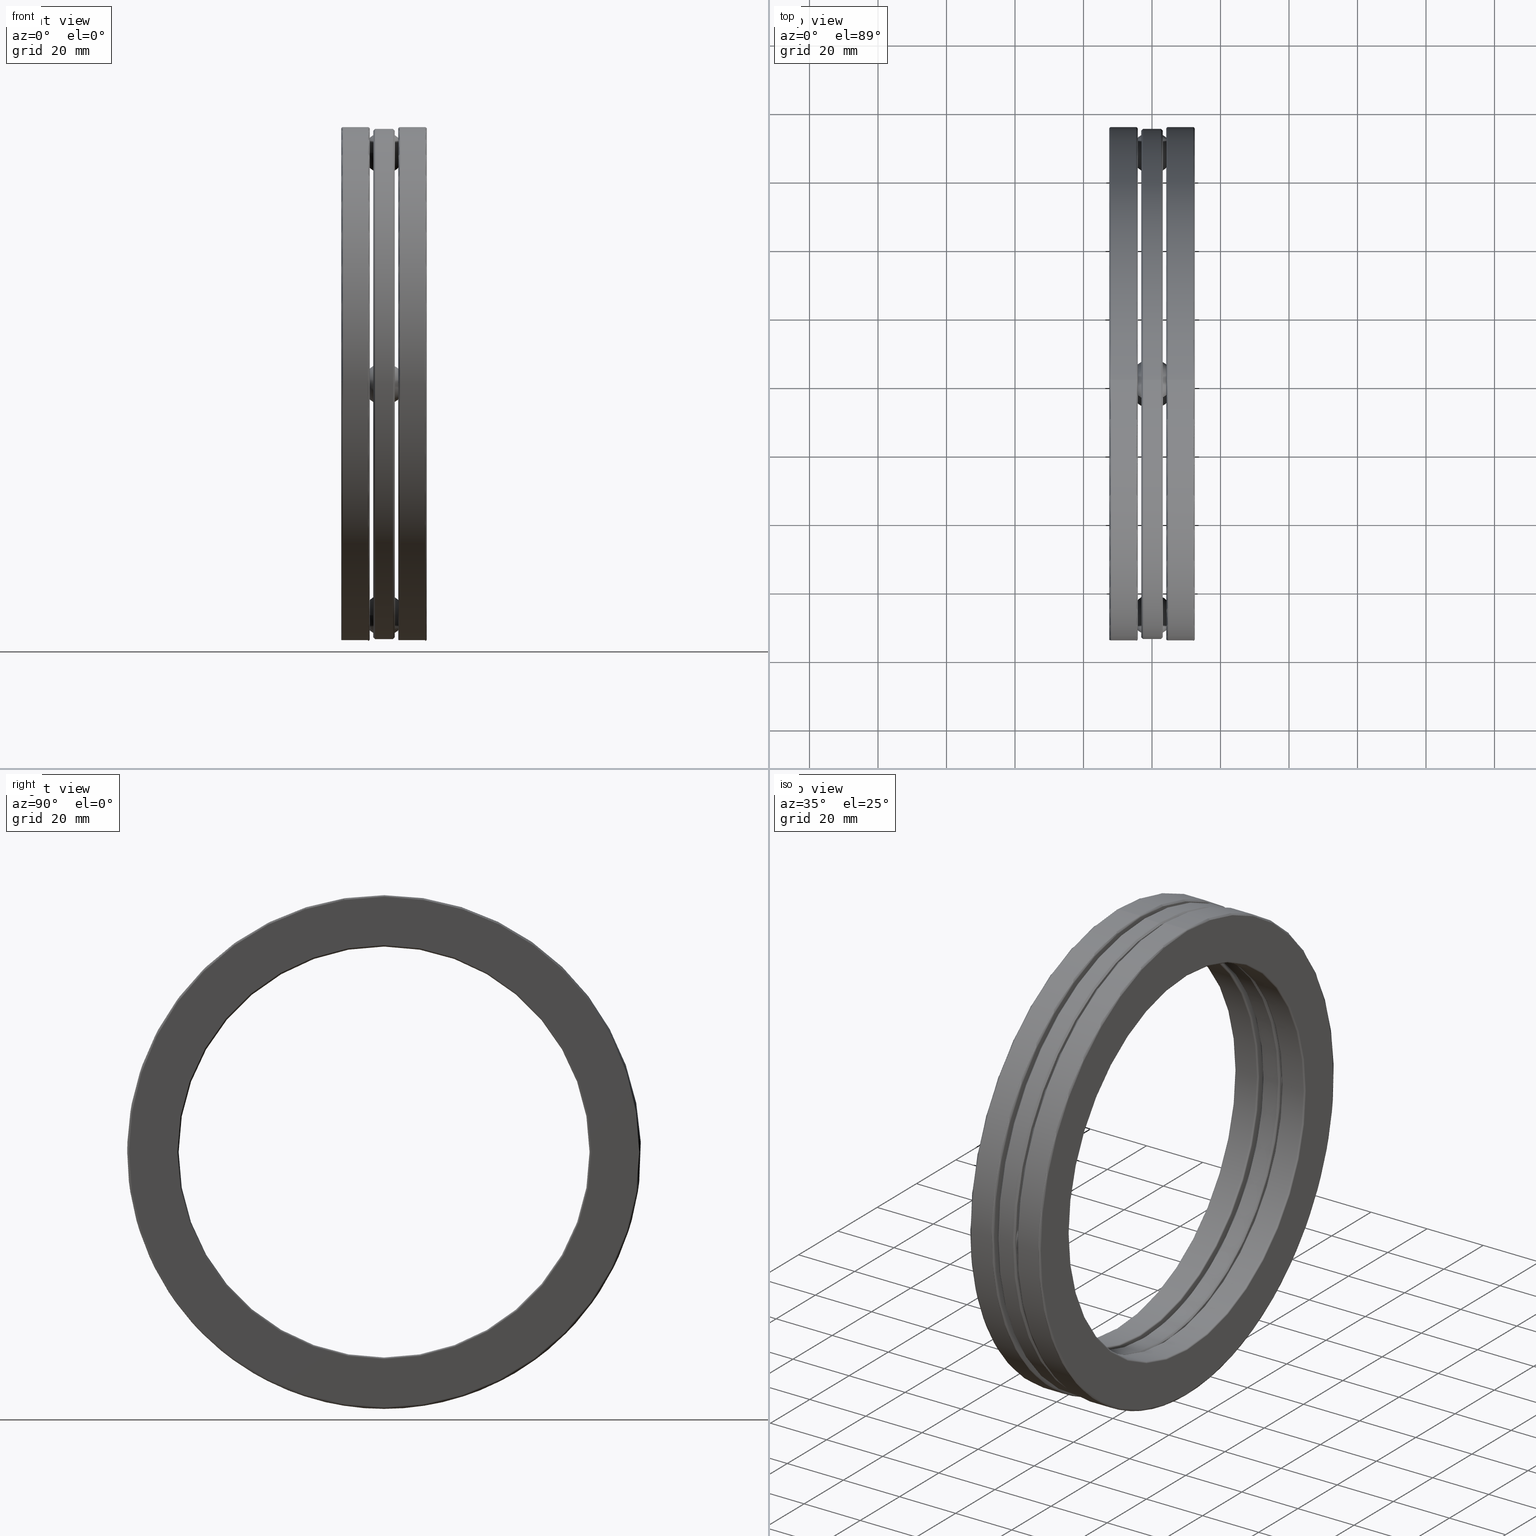
[diagram: canonical four-view strip — front | top / right | iso, engineering-drawing reading convention]
A machine part, canonical four-view strip (front | top / right | iso — engineering-drawing reading convention). The complete STEP part file that produces these views, byte-faithful:
ISO-10303-21;
HEADER;
FILE_DESCRIPTION (( 'STEP AP203' ),
    '1' );
FILE_NAME ('2923-ABB.step',
    '2017-03-07T16:43:16',
    ( '' ),
    ( '' ),
    'SwSTEP 2.0',
    'SolidWorks 2017',
    '' );
FILE_SCHEMA (( 'CONFIG_CONTROL_DESIGN' ));
ENDSEC;

DATA;
#1 = ORIENTED_EDGE ( 'NONE', *, *, #584, .F. ) ;
#2 = EDGE_LOOP ( 'NONE', ( #454 ) ) ;
#3 = DIRECTION ( 'NONE',  ( -1.000000000000000000, -0.0000000000000000000, -0.0000000000000000000 ) ) ;
#4 = EDGE_CURVE ( 'NONE', #408, #408, #273, .T. ) ;
#5 = CARTESIAN_POINT ( 'NONE',  ( 1.627249434367045600E-016, -2.657499999999999800, 0.0000000000000000000 ) ) ;
#6 = DIRECTION ( 'NONE',  ( 1.000000000000000000, 0.0000000000000000000, 0.0000000000000000000 ) ) ;
#7 = EDGE_LOOP ( 'NONE', ( #129 ) ) ;
#8 = EDGE_LOOP ( 'NONE', ( #462 ) ) ;
#9 = DIRECTION ( 'NONE',  ( -1.000000000000000000, -0.0000000000000000000, -0.0000000000000000000 ) ) ;
#10 = VERTEX_POINT ( 'NONE', #721 ) ;
#11 = CIRCLE ( 'NONE', #439, 2.933000000000000300 ) ;
#12 = ADVANCED_FACE ( 'NONE', ( #139, #588 ), #550, .T. ) ;
#13 = EDGE_CURVE ( 'NONE', #190, #190, #600, .T. ) ;
#14 = CARTESIAN_POINT ( 'NONE',  ( -0.4919999999999998300, 0.0000000000000000000, 0.0000000000000000000 ) ) ;
#15 = ORIENTED_EDGE ( 'NONE', *, *, #645, .F. ) ;
#16 = FACE_OUTER_BOUND ( 'NONE', #688, .T. ) ;
#17 = DIRECTION ( 'NONE',  ( 0.0000000000000000000, -1.000000000000000000, 4.424045333869238700E-015 ) ) ;
#18 = ORIENTED_EDGE ( 'NONE', *, *, #78, .F. ) ;
#19 = ADVANCED_FACE ( 'NONE', ( #511, #82, #470, #106, #729, #214 ), #580, .T. ) ;
#20 = CARTESIAN_POINT ( 'NONE',  ( -0.1229999999999999600, -2.657499999999999800, 0.0000000000000000000 ) ) ;
#21 = PERSON_AND_ORGANIZATION ( #723, #791 ) ;
#22 = CIRCLE ( 'NONE', #792, 2.913000000000000300 ) ;
#23 = ADVANCED_FACE ( 'NONE', ( #312, #810 ), #612, .T. ) ;
#24 = DIRECTION ( 'NONE',  ( -1.000000000000000000, -0.0000000000000000000, -0.0000000000000000000 ) ) ;
#25 = DIRECTION ( 'NONE',  ( -1.000000000000000000, -0.0000000000000000000, -0.0000000000000000000 ) ) ;
#26 = AXIS2_PLACEMENT_3D ( 'NONE', #533, #69, #589 ) ;
#27 = FACE_BOUND ( 'NONE', #477, .T. ) ;
#28 = ADVANCED_FACE ( 'NONE', ( #444, #405 ), #434, .T. ) ;
#29 = EDGE_LOOP ( 'NONE', ( #637 ) ) ;
#30 = DIRECTION ( 'NONE',  ( -1.000000000000000000, -0.0000000000000000000, -0.0000000000000000000 ) ) ;
#31 = EDGE_LOOP ( 'NONE', ( #504 ) ) ;
#32 = SECURITY_CLASSIFICATION_LEVEL ( 'unclassified' ) ;
#33 = CARTESIAN_POINT ( 'NONE',  ( 0.1640032800000013100, 0.0000000000000000000, 0.0000000000000000000 ) ) ;
#34 = EDGE_CURVE ( 'NONE', #757, #757, #790, .T. ) ;
#35 = PERSON_AND_ORGANIZATION ( #723, #791 ) ;
#36 = CARTESIAN_POINT ( 'NONE',  ( -0.1029999999999999900, 0.0000000000000000000, 2.933000000000000300 ) ) ;
#37 = CIRCLE ( 'NONE', #592, 2.362000000000000100 ) ;
#38 = DIRECTION ( 'NONE',  ( 0.0000000000000000000, 0.0000000000000000000, 1.000000000000000000 ) ) ;
#39 = CARTESIAN_POINT ( 'NONE',  ( 0.1230000000000000700, 0.0000000000000000000, 2.402000000000000100 ) ) ;
#40 = CARTESIAN_POINT ( 'NONE',  ( -0.1640032799999996400, 0.0000000000000000000, 0.0000000000000000000 ) ) ;
#41 = EDGE_LOOP ( 'NONE', ( #384 ) ) ;
#42 = AXIS2_PLACEMENT_3D ( 'NONE', #336, #274, #764 ) ;
#43 = CARTESIAN_POINT ( 'NONE',  ( 0.1640032800000013100, 0.0000000000000000000, 2.835452027662629200 ) ) ;
#44 = CIRCLE ( 'NONE', #369, 0.2470000000000007500 ) ;
#45 = EDGE_LOOP ( 'NONE', ( #420 ) ) ;
#46 = CARTESIAN_POINT ( 'NONE',  ( -0.4719999999999998600, 0.0000000000000000000, 0.0000000000000000000 ) ) ;
#47 = DIRECTION ( 'NONE',  ( 1.000000000000000000, 0.0000000000000000000, 0.0000000000000000000 ) ) ;
#48 = PERSON_AND_ORGANIZATION_ROLE ( 'creator' ) ;
#49 = DIRECTION ( 'NONE',  ( -1.000000000000000000, -0.0000000000000000000, -0.0000000000000000000 ) ) ;
#50 = APPROVAL_PERSON_ORGANIZATION ( #695, #56, #671 ) ;
#51 = FACE_BOUND ( 'NONE', #80, .T. ) ;
#52 = EDGE_LOOP ( 'NONE', ( #325 ) ) ;
#53 = FACE_OUTER_BOUND ( 'NONE', #451, .T. ) ;
#54 = TOROIDAL_SURFACE ( 'NONE', #744, 2.657499999999999800, 0.2420000000000001900 ) ;
#55 = CARTESIAN_POINT ( 'NONE',  ( -0.4920393700787399300, -2.657499999999999800, 0.0000000000000000000 ) ) ;
#56 = APPROVAL ( #505, 'UNSPECIFIED' ) ;
#57 = VERTEX_POINT ( 'NONE', #188 ) ;
#58 = CARTESIAN_POINT ( 'NONE',  ( 0.1640032800000013100, 0.0000000000000000000, 0.0000000000000000000 ) ) ;
#59 = CIRCLE ( 'NONE', #26, 2.402000000000000100 ) ;
#60 = DIRECTION ( 'NONE',  ( 0.0000000000000000000, 0.0000000000000000000, 1.000000000000000000 ) ) ;
#61 = AXIS2_PLACEMENT_3D ( 'NONE', #682, #49, #508 ) ;
#62 = DIRECTION ( 'NONE',  ( 0.0000000000000000000, 0.0000000000000000000, 1.000000000000000000 ) ) ;
#63 = EDGE_LOOP ( 'NONE', ( #108 ) ) ;
#64 = APPROVAL_DATE_TIME ( #311, #131 ) ;
#65 = FACE_OUTER_BOUND ( 'NONE', #63, .T. ) ;
#66 = CC_DESIGN_APPROVAL ( #257, ( #380 ) ) ;
#67 = PERSON_AND_ORGANIZATION ( #723, #791 ) ;
#68 = TOROIDAL_SURFACE ( 'NONE', #534, 2.381999999999999700, 0.01999999999999988900 ) ;
#69 = DIRECTION ( 'NONE',  ( -1.000000000000000000, -0.0000000000000000000, -0.0000000000000000000 ) ) ;
#70 = EDGE_LOOP ( 'NONE', ( #158 ) ) ;
#71 = FACE_BOUND ( 'NONE', #778, .T. ) ;
#72 = TOROIDAL_SURFACE ( 'NONE', #119, 2.932999999999999400, 0.01999999999999988900 ) ;
#73 = DIRECTION ( 'NONE',  ( 0.0000000000000000000, -1.000000000000000000, 1.047444401652940000E-014 ) ) ;
#74 = ORIENTED_EDGE ( 'NONE', *, *, #282, .T. ) ;
#75 = AXIS2_PLACEMENT_3D ( 'NONE', #400, #140, #549 ) ;
#76 = VERTEX_POINT ( 'NONE', #563 ) ;
#77 = FACE_OUTER_BOUND ( 'NONE', #569, .T. ) ;
#78 = EDGE_CURVE ( 'NONE', #638, #638, #581, .T. ) ;
#79 = DIRECTION ( 'NONE',  ( 0.0000000000000000000, 0.0000000000000000000, 1.000000000000000000 ) ) ;
#80 = EDGE_LOOP ( 'NONE', ( #355 ) ) ;
#81 = AXIS2_PLACEMENT_3D ( 'NONE', #601, #356, #307 ) ;
#82 = FACE_BOUND ( 'NONE', #45, .T. ) ;
#83 = DIMENSIONAL_EXPONENTS ( 1.000000000000000000, 0.0000000000000000000, 0.0000000000000000000, 0.0000000000000000000, 0.0000000000000000000, 0.0000000000000000000, 0.0000000000000000000 ) ;
#84 = EDGE_LOOP ( 'NONE', ( #205 ) ) ;
#85 = CARTESIAN_POINT ( 'NONE',  ( 0.1640032800000013100, 0.0000000000000000000, 2.381999999999999700 ) ) ;
#86 = AXIS2_PLACEMENT_3D ( 'NONE', #430, #677, #487 ) ;
#87 = VERTEX_POINT ( 'NONE', #184 ) ;
#88 = ADVANCED_FACE ( 'NONE', ( #422, #262 ), #96, .T. ) ;
#89 = FACE_OUTER_BOUND ( 'NONE', #41, .T. ) ;
#90 = DIRECTION ( 'NONE',  ( 0.0000000000000000000, 0.0000000000000000000, 1.000000000000000000 ) ) ;
#91 = DIRECTION ( 'NONE',  ( -1.000000000000000000, -0.0000000000000000000, -0.0000000000000000000 ) ) ;
#92 = EDGE_CURVE ( 'NONE', #650, #650, #491, .T. ) ;
#93 = ADVANCED_FACE ( 'NONE', ( #526, #331 ), #72, .T. ) ;
#94 = EDGE_LOOP ( 'NONE', ( #740 ) ) ;
#95 =( LENGTH_UNIT ( ) NAMED_UNIT ( * ) SI_UNIT ( $, .METRE. ) );
#96 = TOROIDAL_SURFACE ( 'NONE', #431, 2.932999999999999400, 0.02000000000000016300 ) ;
#97 = DIRECTION ( 'NONE',  ( -1.000000000000000000, -0.0000000000000000000, -0.0000000000000000000 ) ) ;
#98 = ADVANCED_FACE ( 'NONE', ( #571, #127 ), #741, .T. ) ;
#99 = CARTESIAN_POINT ( 'NONE',  ( -0.1840032799999996300, 0.0000000000000000000, 0.0000000000000000000 ) ) ;
#100 = CIRCLE ( 'NONE', #75, 2.362000000000000100 ) ;
#101 = CARTESIAN_POINT ( 'NONE',  ( 0.4920000000000002700, 0.0000000000000000000, 2.932999999999999400 ) ) ;
#102 = ADVANCED_FACE ( 'NONE', ( #414, #362 ), #54, .F. ) ;
#103 = AXIS2_PLACEMENT_3D ( 'NONE', #55, #334, #636 ) ;
#104 =( NAMED_UNIT ( * ) SI_UNIT ( $, .STERADIAN. ) SOLID_ANGLE_UNIT ( ) );
#105 = EDGE_LOOP ( 'NONE', ( #381 ) ) ;
#106 = FACE_BOUND ( 'NONE', #690, .T. ) ;
#107 = CARTESIAN_POINT ( 'NONE',  ( -0.1229999999999999600, -9.278611657975625200E-015, -2.657499999999999800 ) ) ;
#108 = ORIENTED_EDGE ( 'NONE', *, *, #448, .F. ) ;
#109 = CARTESIAN_POINT ( 'NONE',  ( -0.1229999999999999600, -2.657499999999999800, 0.2470000000000007500 ) ) ;
#110 = VERTEX_POINT ( 'NONE', #736 ) ;
#111 = CARTESIAN_POINT ( 'NONE',  ( 0.4720000000000014700, 0.0000000000000000000, 2.362000000000000100 ) ) ;
#112 = CIRCLE ( 'NONE', #322, 2.913000000000000300 ) ;
#113 =( GEOMETRIC_REPRESENTATION_CONTEXT ( 3 ) GLOBAL_UNCERTAINTY_ASSIGNED_CONTEXT ( ( #593 ) ) GLOBAL_UNIT_ASSIGNED_CONTEXT ( ( #553, #489, #104 ) ) REPRESENTATION_CONTEXT ( 'NONE', 'WORKASPACE' ) );
#114 = CARTESIAN_POINT ( 'NONE',  ( -0.1840032799999996300, 0.0000000000000000000, 2.952999999999999400 ) ) ;
#115 = DIRECTION ( 'NONE',  ( 0.0000000000000000000, 1.000000000000000000, -1.106011333467309800E-014 ) ) ;
#116 = CYLINDRICAL_SURFACE ( 'NONE', #86, 2.381999999999999700 ) ;
#117 = ORIENTED_EDGE ( 'NONE', *, *, #314, .T. ) ;
#118 = DIRECTION ( 'NONE',  ( -1.000000000000000000, -0.0000000000000000000, -0.0000000000000000000 ) ) ;
#119 = AXIS2_PLACEMENT_3D ( 'NONE', #629, #685, #255 ) ;
#120 = COORDINATED_UNIVERSAL_TIME_OFFSET ( 5, 0, .BEHIND. ) ;
#121 = CARTESIAN_POINT ( 'NONE',  ( 0.0000000000000000000, 0.0000000000000000000, 0.0000000000000000000 ) ) ;
#122 = CARTESIAN_POINT ( 'NONE',  ( 0.1230000000000000700, 0.0000000000000000000, 0.0000000000000000000 ) ) ;
#123 = ORIENTED_EDGE ( 'NONE', *, *, #503, .F. ) ;
#124 = AXIS2_PLACEMENT_3D ( 'NONE', #263, #507, #441 ) ;
#125 = CLOSED_SHELL ( 'NONE', ( #412, #784, #551, #234, #88, #727, #148, #239, #471, #606 ) ) ;
#126 = DIRECTION ( 'NONE',  ( 0.0000000000000000000, 0.0000000000000000000, -1.000000000000000000 ) ) ;
#127 = FACE_OUTER_BOUND ( 'NONE', #315, .T. ) ;
#128 = DESIGN_CONTEXT ( 'detailed design', #749, 'design' ) ;
#129 = ORIENTED_EDGE ( 'NONE', *, *, #752, .T. ) ;
#130 = DIRECTION ( 'NONE',  ( 0.0000000000000000000, 0.0000000000000000000, 1.000000000000000000 ) ) ;
#131 = APPROVAL ( #243, 'UNSPECIFIED' ) ;
#132 = DIRECTION ( 'NONE',  ( 0.0000000000000000000, 0.0000000000000000000, 1.000000000000000000 ) ) ;
#133 = VERTEX_POINT ( 'NONE', #433 ) ;
#134 = CIRCLE ( 'NONE', #275, 2.952999999999999400 ) ;
#135 = AXIS2_PLACEMENT_3D ( 'NONE', #143, #251, #804 ) ;
#136 = ORIENTED_EDGE ( 'NONE', *, *, #295, .T. ) ;
#137 = FACE_OUTER_BOUND ( 'NONE', #310, .T. ) ;
#138 = AXIS2_PLACEMENT_3D ( 'NONE', #519, #392, #132 ) ;
#139 = FACE_OUTER_BOUND ( 'NONE', #413, .T. ) ;
#140 = DIRECTION ( 'NONE',  ( -1.000000000000000000, -0.0000000000000000000, -0.0000000000000000000 ) ) ;
#141 = LENGTH_MEASURE_WITH_UNIT ( LENGTH_MEASURE( 0.02539999999999999900 ), #95 );
#142 = DIRECTION ( 'NONE',  ( 0.0000000000000000000, 0.0000000000000000000, 1.000000000000000000 ) ) ;
#143 = CARTESIAN_POINT ( 'NONE',  ( -0.1640032799999996400, 0.0000000000000000000, 0.0000000000000000000 ) ) ;
#144 = CARTESIAN_POINT ( 'NONE',  ( 1.627249434367045600E-016, 2.783583497392687900E-014, 2.657499999999999800 ) ) ;
#145 = FACE_OUTER_BOUND ( 'NONE', #197, .T. ) ;
#146 = ORIENTED_EDGE ( 'NONE', *, *, #766, .F. ) ;
#147 = ORIENTED_EDGE ( 'NONE', *, *, #674, .F. ) ;
#148 = ADVANCED_FACE ( 'NONE', ( #706, #383 ), #194, .T. ) ;
#149 = VERTEX_POINT ( 'NONE', #498 ) ;
#150 = CIRCLE ( 'NONE', #524, 2.952999999999999400 ) ;
#151 = EDGE_CURVE ( 'NONE', #10, #10, #664, .T. ) ;
#152 = CARTESIAN_POINT ( 'NONE',  ( -0.1640032799999996400, 0.0000000000000000000, 2.835452027662630500 ) ) ;
#153 = ADVANCED_FACE ( 'NONE', ( #779, #65 ), #481, .F. ) ;
#154 = CC_DESIGN_SECURITY_CLASSIFICATION ( #707, ( #175 ) ) ;
#155 = DIRECTION ( 'NONE',  ( 0.0000000000000000000, 0.0000000000000000000, 1.000000000000000000 ) ) ;
#156 = DIRECTION ( 'NONE',  ( 0.0000000000000000000, 0.0000000000000000000, 1.000000000000000000 ) ) ;
#157 = CIRCLE ( 'NONE', #759, 2.932999999999999400 ) ;
#158 = ORIENTED_EDGE ( 'NONE', *, *, #328, .F. ) ;
#159 = DIRECTION ( 'NONE',  ( 0.0000000000000000000, 0.0000000000000000000, 1.000000000000000000 ) ) ;
#160 = PERSON_AND_ORGANIZATION ( #723, #791 ) ;
#161 = DIRECTION ( 'NONE',  ( -1.000000000000000000, -0.0000000000000000000, -0.0000000000000000000 ) ) ;
#162 = ADVANCED_FACE ( 'NONE', ( #452, #250 ), #395, .F. ) ;
#163 = AXIS2_PLACEMENT_3D ( 'NONE', #560, #627, #374 ) ;
#164 = DIRECTION ( 'NONE',  ( 0.0000000000000000000, 0.0000000000000000000, -1.000000000000000000 ) ) ;
#165 = EDGE_LOOP ( 'NONE', ( #771 ) ) ;
#166 = DIRECTION ( 'NONE',  ( 0.0000000000000000000, -1.000000000000000000, 2.212022666934619400E-015 ) ) ;
#167 = FACE_OUTER_BOUND ( 'NONE', #754, .T. ) ;
#168 = ADVANCED_FACE ( 'NONE', ( #237, #167 ), #548, .T. ) ;
#169 = APPLICATION_PROTOCOL_DEFINITION ( 'international standard', 'config_control_design', 1994, #749 ) ;
#170 = EDGE_LOOP ( 'NONE', ( #613 ) ) ;
#171 = EDGE_LOOP ( 'NONE', ( #717 ) ) ;
#172 = CARTESIAN_POINT ( 'NONE',  ( 0.4720000000000014700, 0.0000000000000000000, 0.0000000000000000000 ) ) ;
#173 = AXIS2_PLACEMENT_3D ( 'NONE', #478, #25, #485 ) ;
#174 = PERSON_AND_ORGANIZATION_ROLE ( 'design_owner' ) ;
#175 = PRODUCT_DEFINITION_FORMATION_WITH_SPECIFIED_SOURCE ( 'ANY', '', #402, .NOT_KNOWN. ) ;
#176 = CARTESIAN_POINT ( 'NONE',  ( 1.627249434367045600E-016, -9.278611657975625200E-015, -2.657499999999999800 ) ) ;
#177 = CIRCLE ( 'NONE', #353, 0.2470000000000007500 ) ;
#178 = APPROVAL_STATUS ( 'not_yet_approved' ) ;
#179 = MANIFOLD_SOLID_BREP ( 'Revolve3', #762 ) ;
#180 = CARTESIAN_POINT ( 'NONE',  ( 0.0000000000000000000, 0.0000000000000000000, 0.0000000000000000000 ) ) ;
#181 = MANIFOLD_SOLID_BREP ( 'Revolve1', #125 ) ;
#182 = PLANE ( 'NONE',  #496 ) ;
#183 = AXIS2_PLACEMENT_3D ( 'NONE', #625, #118, #515 ) ;
#184 = CARTESIAN_POINT ( 'NONE',  ( -0.1640032799999996400, 0.0000000000000000000, 2.932999999999999400 ) ) ;
#185 = EDGE_LOOP ( 'NONE', ( #610 ) ) ;
#186 = DIRECTION ( 'NONE',  ( 0.0000000000000000000, 1.000000000000000000, -3.491481338843133400E-015 ) ) ;
#187 = ORIENTED_EDGE ( 'NONE', *, *, #622, .F. ) ;
#188 = CARTESIAN_POINT ( 'NONE',  ( -0.1229999999999999600, 2.657499999999999800, -0.2470000000000007500 ) ) ;
#189 = AXIS2_PLACEMENT_3D ( 'NONE', #661, #91, #156 ) ;
#190 = VERTEX_POINT ( 'NONE', #539 ) ;
#191 = DIRECTION ( 'NONE',  ( 0.0000000000000000000, 0.0000000000000000000, 1.000000000000000000 ) ) ;
#192 = CARTESIAN_POINT ( 'NONE',  ( 0.1840032800000013000, 0.0000000000000000000, 0.0000000000000000000 ) ) ;
#193 = AXIS2_PLACEMENT_3D ( 'NONE', #602, #732, #725 ) ;
#194 = TOROIDAL_SURFACE ( 'NONE', #163, 2.381999999999999700, 0.02000000000000002500 ) ;
#195 = DIRECTION ( 'NONE',  ( 0.0000000000000000000, 0.0000000000000000000, 1.000000000000000000 ) ) ;
#196 = CC_DESIGN_APPROVAL ( #56, ( #175 ) ) ;
#197 = EDGE_LOOP ( 'NONE', ( #147 ) ) ;
#198 = PLANE ( 'NONE',  #824 ) ;
#199 = AXIS2_PLACEMENT_3D ( 'NONE', #450, #385, #578 ) ;
#200 = VERTEX_POINT ( 'NONE', #377 ) ;
#201 = FACE_OUTER_BOUND ( 'NONE', #635, .T. ) ;
#202 = PRODUCT_DEFINITION_SHAPE ( 'NONE', 'NONE',  #380 ) ;
#203 = DIRECTION ( 'NONE',  ( 0.0000000000000000000, 0.0000000000000000000, -1.000000000000000000 ) ) ;
#204 = EDGE_CURVE ( 'NONE', #319, #319, #157, .T. ) ;
#205 = ORIENTED_EDGE ( 'NONE', *, *, #538, .T. ) ;
#206 = FACE_OUTER_BOUND ( 'NONE', #680, .T. ) ;
#207 = EDGE_LOOP ( 'NONE', ( #506 ) ) ;
#208 = AXIS2_PLACEMENT_3D ( 'NONE', #494, #663, #745 ) ;
#209 = PERSON_AND_ORGANIZATION ( #723, #791 ) ;
#210 = FACE_OUTER_BOUND ( 'NONE', #521, .T. ) ;
#211 = DIRECTION ( 'NONE',  ( 0.0000000000000000000, 0.0000000000000000000, -1.000000000000000000 ) ) ;
#212 = DIRECTION ( 'NONE',  ( -1.000000000000000000, -0.0000000000000000000, -0.0000000000000000000 ) ) ;
#213 = AXIS2_PLACEMENT_3D ( 'NONE', #253, #561, #733 ) ;
#214 = FACE_OUTER_BOUND ( 'NONE', #798, .T. ) ;
#215 = ORIENTED_EDGE ( 'NONE', *, *, #766, .T. ) ;
#216 = VERTEX_POINT ( 'NONE', #43 ) ;
#217 = EDGE_CURVE ( 'NONE', #216, #216, #393, .T. ) ;
#218 = FACE_BOUND ( 'NONE', #8, .T. ) ;
#219 = DIRECTION ( 'NONE',  ( 1.000000000000000000, 0.0000000000000000000, 0.0000000000000000000 ) ) ;
#220 = CC_DESIGN_PERSON_AND_ORGANIZATION_ASSIGNMENT ( #209, #739, ( #175 ) ) ;
#221 = DIRECTION ( 'NONE',  ( -1.000000000000000000, -0.0000000000000000000, -0.0000000000000000000 ) ) ;
#222 = EDGE_LOOP ( 'NONE', ( #787 ) ) ;
#223 = CARTESIAN_POINT ( 'NONE',  ( 0.1640032800000013100, 0.0000000000000000000, 0.0000000000000000000 ) ) ;
#224 = FACE_OUTER_BOUND ( 'NONE', #170, .T. ) ;
#225 = ADVANCED_FACE ( 'NONE', ( #224, #284 ), #755, .F. ) ;
#226 = DIRECTION ( 'NONE',  ( 0.0000000000000000000, 0.0000000000000000000, 1.000000000000000000 ) ) ;
#227 = ORIENTED_EDGE ( 'NONE', *, *, #286, .T. ) ;
#228 = AXIS2_PLACEMENT_3D ( 'NONE', #737, #375, #668 ) ;
#229 = DIRECTION ( 'NONE',  ( 1.000000000000000000, 0.0000000000000000000, 0.0000000000000000000 ) ) ;
#230 = LOCAL_TIME ( 11, 43, 16.00000000000000000, #564 ) ;
#231 = SPHERICAL_SURFACE ( 'NONE', #608, 0.2420000000000001900 ) ;
#232 = CARTESIAN_POINT ( 'NONE',  ( -0.1640032799999996400, 0.0000000000000000000, 0.0000000000000000000 ) ) ;
#233 = DIRECTION ( 'NONE',  ( 0.0000000000000000000, 0.0000000000000000000, -1.000000000000000000 ) ) ;
#234 = ADVANCED_FACE ( 'NONE', ( #16, #206 ), #817, .T. ) ;
#235 = EDGE_LOOP ( 'NONE', ( #659 ) ) ;
#236 = FACE_BOUND ( 'NONE', #2, .T. ) ;
#237 = FACE_BOUND ( 'NONE', #468, .T. ) ;
#238 = EDGE_LOOP ( 'NONE', ( #597 ) ) ;
#239 = ADVANCED_FACE ( 'NONE', ( #641, #145 ), #382, .F. ) ;
#240 = CC_DESIGN_DATE_AND_TIME_ASSIGNMENT ( #416, #565, ( #707 ) ) ;
#241 = DIRECTION ( 'NONE',  ( -1.000000000000000000, -0.0000000000000000000, -0.0000000000000000000 ) ) ;
#242 = VERTEX_POINT ( 'NONE', #114 ) ;
#243 = APPROVAL_STATUS ( 'not_yet_approved' ) ;
#244 = CIRCLE ( 'NONE', #773, 2.381999999999999700 ) ;
#245 = AXIS2_PLACEMENT_3D ( 'NONE', #258, #241, #492 ) ;
#246 = APPROVAL_ROLE ( '' ) ;
#247 = DIRECTION ( 'NONE',  ( 0.0000000000000000000, 0.0000000000000000000, 1.000000000000000000 ) ) ;
#248 = ORIENTED_EDGE ( 'NONE', *, *, #575, .F. ) ;
#249 = CARTESIAN_POINT ( 'NONE',  ( 0.1840032800000013000, 0.0000000000000000000, 2.952999999999999400 ) ) ;
#250 = FACE_OUTER_BOUND ( 'NONE', #763, .T. ) ;
#251 = DIRECTION ( 'NONE',  ( -1.000000000000000000, -0.0000000000000000000, -0.0000000000000000000 ) ) ;
#252 = ORIENTED_EDGE ( 'NONE', *, *, #702, .F. ) ;
#253 = CARTESIAN_POINT ( 'NONE',  ( 0.0000000000000000000, 0.0000000000000000000, 0.0000000000000000000 ) ) ;
#254 = EDGE_CURVE ( 'NONE', #465, #465, #679, .T. ) ;
#255 = DIRECTION ( 'NONE',  ( 0.0000000000000000000, 0.0000000000000000000, 1.000000000000000000 ) ) ;
#256 = CALENDAR_DATE ( 2017, 7, 3 ) ;
#257 = APPROVAL ( #178, 'UNSPECIFIED' ) ;
#258 = CARTESIAN_POINT ( 'NONE',  ( -0.1229999999999999400, 0.0000000000000000000, 0.0000000000000000000 ) ) ;
#259 = SPHERICAL_SURFACE ( 'NONE', #396, 0.2420000000000001900 ) ;
#260 = EDGE_LOOP ( 'NONE', ( #435 ) ) ;
#261 = CIRCLE ( 'NONE', #782, 2.932999999999999400 ) ;
#262 = FACE_OUTER_BOUND ( 'NONE', #777, .T. ) ;
#263 = CARTESIAN_POINT ( 'NONE',  ( 0.1230000000000000300, -2.657499999999999800, 0.0000000000000000000 ) ) ;
#264 = DIRECTION ( 'NONE',  ( 1.000000000000000000, 0.0000000000000000000, 0.0000000000000000000 ) ) ;
#265 = AXIS2_PLACEMENT_3D ( 'NONE', #223, #614, #247 ) ;
#266 = VERTEX_POINT ( 'NONE', #361 ) ;
#267 = CARTESIAN_POINT ( 'NONE',  ( 0.1640032800000013100, 0.0000000000000000000, 0.0000000000000000000 ) ) ;
#268 = FACE_OUTER_BOUND ( 'NONE', #105, .T. ) ;
#269 = DIRECTION ( 'NONE',  ( 0.0000000000000000000, 0.0000000000000000000, 1.000000000000000000 ) ) ;
#270 = CARTESIAN_POINT ( 'NONE',  ( 0.1640032800000013100, 0.0000000000000000000, 0.0000000000000000000 ) ) ;
#271 = EDGE_CURVE ( 'NONE', #497, #497, #808, .T. ) ;
#272 = CLOSED_SHELL ( 'NONE', ( #603 ) ) ;
#273 = CIRCLE ( 'NONE', #734, 2.835452027662630500 ) ;
#274 = DIRECTION ( 'NONE',  ( -1.000000000000000000, -0.0000000000000000000, -0.0000000000000000000 ) ) ;
#275 = AXIS2_PLACEMENT_3D ( 'NONE', #99, #358, #159 ) ;
#276 = ORIENTED_EDGE ( 'NONE', *, *, #286, .F. ) ;
#277 = DIRECTION ( 'NONE',  ( 0.0000000000000000000, 0.0000000000000000000, 1.000000000000000000 ) ) ;
#278 = AXIS2_PLACEMENT_3D ( 'NONE', #122, #631, #269 ) ;
#279 = VERTEX_POINT ( 'NONE', #803 ) ;
#280 = CIRCLE ( 'NONE', #425, 2.932999999999999400 ) ;
#281 = CARTESIAN_POINT ( 'NONE',  ( 0.1030000000000000600, 0.0000000000000000000, 0.0000000000000000000 ) ) ;
#282 = EDGE_CURVE ( 'NONE', #333, #333, #44, .T. ) ;
#283 = CLOSED_SHELL ( 'NONE', ( #793 ) ) ;
#284 = FACE_OUTER_BOUND ( 'NONE', #529, .T. ) ;
#285 = ORIENTED_EDGE ( 'NONE', *, *, #605, .F. ) ;
#286 = EDGE_CURVE ( 'NONE', #294, #294, #354, .T. ) ;
#287 = LOCAL_TIME ( 11, 43, 16.00000000000000000, #120 ) ;
#288 = EDGE_LOOP ( 'NONE', ( #345 ) ) ;
#289 = DIRECTION ( 'NONE',  ( 0.0000000000000000000, -1.000000000000000000, 4.424045333869238700E-015 ) ) ;
#290 = AXIS2_PLACEMENT_3D ( 'NONE', #480, #724, #17 ) ;
#291 = EDGE_LOOP ( 'NONE', ( #678 ) ) ;
#292 = ORIENTED_EDGE ( 'NONE', *, *, #517, .T. ) ;
#293 = CARTESIAN_POINT ( 'NONE',  ( 0.1230000000000000300, -2.657499999999999800, 0.2470000000000007500 ) ) ;
#294 = VERTEX_POINT ( 'NONE', #675 ) ;
#295 = EDGE_CURVE ( 'NONE', #554, #554, #700, .T. ) ;
#296 = CIRCLE ( 'NONE', #183, 2.932999999999999400 ) ;
#297 = ADVANCED_FACE ( 'NONE', ( #656, #479 ), #182, .F. ) ;
#298 = CC_DESIGN_PERSON_AND_ORGANIZATION_ASSIGNMENT ( #378, #316, ( #175 ) ) ;
#299 = CARTESIAN_POINT ( 'NONE',  ( -0.1230000000000000100, 0.0000000000000000000, 0.0000000000000000000 ) ) ;
#300 = DIRECTION ( 'NONE',  ( 1.000000000000000000, 0.0000000000000000000, 0.0000000000000000000 ) ) ;
#301 = ORIENTED_EDGE ( 'NONE', *, *, #702, .T. ) ;
#302 = FACE_OUTER_BOUND ( 'NONE', #467, .T. ) ;
#303 = CARTESIAN_POINT ( 'NONE',  ( 0.1029999999999999900, 0.0000000000000000000, 0.0000000000000000000 ) ) ;
#304 = CLOSED_SHELL ( 'NONE', ( #654 ) ) ;
#305 = ADVANCED_FACE ( 'NONE', ( #587, #689 ), #326, .T. ) ;
#306 = CC_DESIGN_PERSON_AND_ORGANIZATION_ASSIGNMENT ( #340, #174, ( #402 ) ) ;
#307 = DIRECTION ( 'NONE',  ( 0.0000000000000000000, 0.0000000000000000000, 1.000000000000000000 ) ) ;
#308 = AXIS2_PLACEMENT_3D ( 'NONE', #107, #618, #166 ) ;
#309 = ORIENTED_EDGE ( 'NONE', *, *, #448, .T. ) ;
#310 = EDGE_LOOP ( 'NONE', ( #136 ) ) ;
#311 = DATE_AND_TIME ( #761, #230 ) ;
#312 = FACE_OUTER_BOUND ( 'NONE', #222, .T. ) ;
#313 = DIRECTION ( 'NONE',  ( 1.000000000000000000, -0.0000000000000000000, 0.0000000000000000000 ) ) ;
#314 = EDGE_CURVE ( 'NONE', #279, #279, #789, .T. ) ;
#315 = EDGE_LOOP ( 'NONE', ( #309 ) ) ;
#316 = PERSON_AND_ORGANIZATION_ROLE ( 'creator' ) ;
#317 = AXIS2_PLACEMENT_3D ( 'NONE', #232, #475, #164 ) ;
#318 = DIRECTION ( 'NONE',  ( 0.0000000000000000000, 0.0000000000000000000, -1.000000000000000000 ) ) ;
#319 = VERTEX_POINT ( 'NONE', #716 ) ;
#320 = CARTESIAN_POINT ( 'NONE',  ( -0.1640032799999996400, 0.0000000000000000000, 2.479547972337369000 ) ) ;
#321 = CYLINDRICAL_SURFACE ( 'NONE', #386, 0.2470000000000007500 ) ;
#322 = AXIS2_PLACEMENT_3D ( 'NONE', #463, #776, #142 ) ;
#323 = APPLICATION_PROTOCOL_DEFINITION ( 'international standard', 'config_control_design', 1994, #372 ) ;
#324 = DIRECTION ( 'NONE',  ( -1.000000000000000000, -0.0000000000000000000, -0.0000000000000000000 ) ) ;
#325 = ORIENTED_EDGE ( 'NONE', *, *, #584, .T. ) ;
#326 = CYLINDRICAL_SURFACE ( 'NONE', #213, 2.952999999999999400 ) ;
#327 = EDGE_LOOP ( 'NONE', ( #363 ) ) ;
#328 = EDGE_CURVE ( 'NONE', #457, #457, #261, .T. ) ;
#329 = CALENDAR_DATE ( 2017, 7, 3 ) ;
#330 = DIRECTION ( 'NONE',  ( -1.000000000000000000, -0.0000000000000000000, -0.0000000000000000000 ) ) ;
#331 = FACE_OUTER_BOUND ( 'NONE', #207, .T. ) ;
#332 = ORIENTED_EDGE ( 'NONE', *, *, #605, .T. ) ;
#333 = VERTEX_POINT ( 'NONE', #436 ) ;
#334 = DIRECTION ( 'NONE',  ( 1.000000000000000000, 0.0000000000000000000, 0.0000000000000000000 ) ) ;
#335 = CIRCLE ( 'NONE', #401, 2.362000000000000100 ) ;
#336 = CARTESIAN_POINT ( 'NONE',  ( 0.0000000000000000000, 0.0000000000000000000, 0.0000000000000000000 ) ) ;
#337 = ORIENTED_EDGE ( 'NONE', *, *, #714, .F. ) ;
#338 = ORIENTED_EDGE ( 'NONE', *, *, #204, .F. ) ;
#339 = CARTESIAN_POINT ( 'NONE',  ( -0.1640032799999996400, 0.0000000000000000000, 0.0000000000000000000 ) ) ;
#340 = PERSON_AND_ORGANIZATION ( #723, #791 ) ;
#341 = CC_DESIGN_DATE_AND_TIME_ASSIGNMENT ( #426, #805, ( #380 ) ) ;
#342 = AXIS2_PLACEMENT_3D ( 'NONE', #176, #186, #621 ) ;
#343 = EDGE_LOOP ( 'NONE', ( #15 ) ) ;
#344 = ORIENTED_EDGE ( 'NONE', *, *, #314, .F. ) ;
#345 = ORIENTED_EDGE ( 'NONE', *, *, #151, .T. ) ;
#346 = EDGE_CURVE ( 'NONE', #76, #76, #795, .T. ) ;
#347 = CARTESIAN_POINT ( 'NONE',  ( -0.1840032799999996300, 0.0000000000000000000, 0.0000000000000000000 ) ) ;
#348 = TOROIDAL_SURFACE ( 'NONE', #632, 2.932999999999999400, 0.01999999999999988900 ) ;
#349 = ADVANCED_FACE ( 'NONE', ( #461, #302 ), #116, .F. ) ;
#350 = DIRECTION ( 'NONE',  ( -1.000000000000000000, -0.0000000000000000000, -0.0000000000000000000 ) ) ;
#351 = ORIENTED_EDGE ( 'NONE', *, *, #622, .T. ) ;
#352 = DIRECTION ( 'NONE',  ( 0.0000000000000000000, 0.0000000000000000000, -1.000000000000000000 ) ) ;
#353 = AXIS2_PLACEMENT_3D ( 'NONE', #649, #212, #525 ) ;
#354 = CIRCLE ( 'NONE', #228, 2.381999999999999700 ) ;
#355 = ORIENTED_EDGE ( 'NONE', *, *, #4, .T. ) ;
#356 = DIRECTION ( 'NONE',  ( -1.000000000000000000, -0.0000000000000000000, -0.0000000000000000000 ) ) ;
#357 = AXIS2_PLACEMENT_3D ( 'NONE', #407, #6, #523 ) ;
#358 = DIRECTION ( 'NONE',  ( -1.000000000000000000, -0.0000000000000000000, -0.0000000000000000000 ) ) ;
#359 = CARTESIAN_POINT ( 'NONE',  ( -0.4719999999999998600, 0.0000000000000000000, 0.0000000000000000000 ) ) ;
#360 = ADVANCED_FACE ( 'NONE', ( #71, #404, #236, #27, #726, #570 ), #367, .F. ) ;
#361 = CARTESIAN_POINT ( 'NONE',  ( -0.1230000000000000100, 0.0000000000000000000, 2.913000000000000300 ) ) ;
#362 = FACE_OUTER_BOUND ( 'NONE', #165, .T. ) ;
#363 = ORIENTED_EDGE ( 'NONE', *, *, #217, .F. ) ;
#364 = ADVANCED_FACE ( 'NONE', ( ), #770, .T. ) ;
#365 = CARTESIAN_POINT ( 'NONE',  ( 0.1029999999999999900, 0.0000000000000000000, 2.933000000000000300 ) ) ;
#366 = VERTEX_POINT ( 'NONE', #111 ) ;
#367 = PLANE ( 'NONE',  #482 ) ;
#368 = FACE_BOUND ( 'NONE', #640, .T. ) ;
#369 = AXIS2_PLACEMENT_3D ( 'NONE', #809, #822, #483 ) ;
#370 = PERSON_AND_ORGANIZATION_ROLE ( 'classification_officer' ) ;
#371 = DIRECTION ( 'NONE',  ( -1.000000000000000000, -0.0000000000000000000, -0.0000000000000000000 ) ) ;
#372 = APPLICATION_CONTEXT ( 'configuration controlled 3d designs of mechanical parts and assemblies' ) ;
#373 = EDGE_LOOP ( 'NONE', ( #715 ) ) ;
#374 = DIRECTION ( 'NONE',  ( 0.0000000000000000000, 0.0000000000000000000, 1.000000000000000000 ) ) ;
#375 = DIRECTION ( 'NONE',  ( -1.000000000000000000, -0.0000000000000000000, -0.0000000000000000000 ) ) ;
#376 = EDGE_LOOP ( 'NONE', ( #285 ) ) ;
#377 = CARTESIAN_POINT ( 'NONE',  ( -0.1229999999999999400, 0.0000000000000000000, 2.402000000000000100 ) ) ;
#378 = PERSON_AND_ORGANIZATION ( #723, #791 ) ;
#379 = FACE_OUTER_BOUND ( 'NONE', #513, .T. ) ;
#380 = PRODUCT_DEFINITION ( 'UNKNOWN', '', #175, #128 ) ;
#381 = ORIENTED_EDGE ( 'NONE', *, *, #538, .F. ) ;
#382 = CYLINDRICAL_SURFACE ( 'NONE', #796, 2.362000000000000100 ) ;
#383 = FACE_OUTER_BOUND ( 'NONE', #760, .T. ) ;
#384 = ORIENTED_EDGE ( 'NONE', *, *, #657, .T. ) ;
#385 = DIRECTION ( 'NONE',  ( 1.000000000000000000, 0.0000000000000000000, 0.0000000000000000000 ) ) ;
#386 = AXIS2_PLACEMENT_3D ( 'NONE', #814, #758, #126 ) ;
#387 = VERTEX_POINT ( 'NONE', #440 ) ;
#388 = FACE_OUTER_BOUND ( 'NONE', #94, .T. ) ;
#389 = AXIS2_PLACEMENT_3D ( 'NONE', #746, #624, #807 ) ;
#390 = CARTESIAN_POINT ( 'NONE',  ( -0.1640032799999996400, 0.0000000000000000000, 0.0000000000000000000 ) ) ;
#391 = ORIENTED_EDGE ( 'NONE', *, *, #328, .T. ) ;
#392 = DIRECTION ( 'NONE',  ( -1.000000000000000000, -0.0000000000000000000, -0.0000000000000000000 ) ) ;
#393 = CIRCLE ( 'NONE', #615, 2.835452027662629200 ) ;
#394 = ORIENTED_EDGE ( 'NONE', *, *, #34, .F. ) ;
#395 = PLANE ( 'NONE',  #652 ) ;
#396 = AXIS2_PLACEMENT_3D ( 'NONE', #5, #473, #772 ) ;
#397 = CALENDAR_DATE ( 2017, 7, 3 ) ;
#398 = CARTESIAN_POINT ( 'NONE',  ( 0.1029999999999999900, 0.0000000000000000000, 0.0000000000000000000 ) ) ;
#399 = FACE_OUTER_BOUND ( 'NONE', #235, .T. ) ;
#400 = CARTESIAN_POINT ( 'NONE',  ( -0.1840032799999996300, 0.0000000000000000000, 0.0000000000000000000 ) ) ;
#401 = AXIS2_PLACEMENT_3D ( 'NONE', #653, #161, #226 ) ;
#402 = PRODUCT ( '2923-ABB', '2923-ABB', '', ( #556 ) ) ;
#403 = EDGE_LOOP ( 'NONE', ( #1 ) ) ;
#404 = FACE_BOUND ( 'NONE', #460, .T. ) ;
#405 = FACE_OUTER_BOUND ( 'NONE', #406, .T. ) ;
#406 = EDGE_LOOP ( 'NONE', ( #146 ) ) ;
#407 = CARTESIAN_POINT ( 'NONE',  ( -0.4920393700787399300, 2.783583497392687900E-014, 2.657499999999999800 ) ) ;
#408 = VERTEX_POINT ( 'NONE', #152 ) ;
#409 = CARTESIAN_POINT ( 'NONE',  ( 0.1230000000000000300, -9.278611657975625200E-015, -2.657499999999999800 ) ) ;
#410 = DIRECTION ( 'NONE',  ( 0.0000000000000000000, 0.0000000000000000000, -1.000000000000000000 ) ) ;
#411 = AXIS2_PLACEMENT_3D ( 'NONE', #180, #676, #277 ) ;
#412 = ADVANCED_FACE ( 'NONE', ( #137, #53 ), #417, .F. ) ;
#413 = EDGE_LOOP ( 'NONE', ( #493 ) ) ;
#414 = FACE_OUTER_BOUND ( 'NONE', #634, .T. ) ;
#415 = DIRECTION ( 'NONE',  ( -1.000000000000000000, -0.0000000000000000000, -0.0000000000000000000 ) ) ;
#416 = DATE_AND_TIME ( #256, #583 ) ;
#417 = TOROIDAL_SURFACE ( 'NONE', #466, 2.657499999999999800, 0.2420000000000000200 ) ;
#418 = DIRECTION ( 'NONE',  ( 0.0000000000000000000, 0.0000000000000000000, 1.000000000000000000 ) ) ;
#419 = ADVANCED_FACE ( 'NONE', ( #712, #735 ), #651, .F. ) ;
#420 = ORIENTED_EDGE ( 'NONE', *, *, #92, .F. ) ;
#421 = CARTESIAN_POINT ( 'NONE',  ( 1.627249434367045600E-016, 2.657499999999999800, 0.0000000000000000000 ) ) ;
#422 = FACE_OUTER_BOUND ( 'NONE', #70, .T. ) ;
#423 = CC_DESIGN_PERSON_AND_ORGANIZATION_ASSIGNMENT ( #21, #370, ( #707 ) ) ;
#424 = DIRECTION ( 'NONE',  ( 0.0000000000000000000, 0.0000000000000000000, 1.000000000000000000 ) ) ;
#425 = AXIS2_PLACEMENT_3D ( 'NONE', #339, #221, #780 ) ;
#426 = DATE_AND_TIME ( #590, #287 ) ;
#427 = CARTESIAN_POINT ( 'NONE',  ( 0.1230000000000000300, 0.2470000000000285600, 2.657499999999997100 ) ) ;
#428 = CARTESIAN_POINT ( 'NONE',  ( 0.4720000000000014700, 0.0000000000000000000, 2.952999999999999400 ) ) ;
#429 = EDGE_LOOP ( 'NONE', ( #292 ) ) ;
#430 = CARTESIAN_POINT ( 'NONE',  ( 0.0000000000000000000, 0.0000000000000000000, 0.0000000000000000000 ) ) ;
#431 = AXIS2_PLACEMENT_3D ( 'NONE', #46, #620, #445 ) ;
#432 = CLOSED_SHELL ( 'NONE', ( #660, #168, #28, #19, #544, #349, #419, #360, #540, #598, #225, #722 ) ) ;
#433 = CARTESIAN_POINT ( 'NONE',  ( 0.1230000000000000000, 0.0000000000000000000, 2.913000000000000300 ) ) ;
#434 = CYLINDRICAL_SURFACE ( 'NONE', #173, 2.933000000000000300 ) ;
#435 = ORIENTED_EDGE ( 'NONE', *, *, #693, .T. ) ;
#436 = CARTESIAN_POINT ( 'NONE',  ( -0.1229999999999999600, 0.2470000000000285600, 2.657499999999997500 ) ) ;
#437 = DIRECTION ( 'NONE',  ( 0.0000000000000000000, 0.0000000000000000000, 1.000000000000000000 ) ) ;
#438 = FACE_BOUND ( 'NONE', #562, .T. ) ;
#439 = AXIS2_PLACEMENT_3D ( 'NONE', #303, #24, #418 ) ;
#440 = CARTESIAN_POINT ( 'NONE',  ( 0.1230000000000000300, -0.2470000000000100200, -2.657499999999998400 ) ) ;
#441 = DIRECTION ( 'NONE',  ( 0.0000000000000000000, 0.0000000000000000000, 1.000000000000000000 ) ) ;
#442 = DIRECTION ( 'NONE',  ( 0.0000000000000000000, 0.0000000000000000000, -1.000000000000000000 ) ) ;
#443 = ORIENTED_EDGE ( 'NONE', *, *, #575, .T. ) ;
#444 = FACE_OUTER_BOUND ( 'NONE', #260, .T. ) ;
#445 = DIRECTION ( 'NONE',  ( 0.0000000000000000000, 0.0000000000000000000, 1.000000000000000000 ) ) ;
#446 = DIRECTION ( 'NONE',  ( 0.0000000000000000000, 0.0000000000000000000, 1.000000000000000000 ) ) ;
#447 = DATE_AND_TIME ( #329, #576 ) ;
#448 = EDGE_CURVE ( 'NONE', #366, #366, #37, .T. ) ;
#449 = ADVANCED_BREP_SHAPE_REPRESENTATION ( '2923-ABB', ( #181, #179, #616, #512, #794, #765, #669, #208 ), #113 ) ;
#450 = CARTESIAN_POINT ( 'NONE',  ( 0.1230000000000000700, 0.0000000000000000000, 0.0000000000000000000 ) ) ;
#451 = EDGE_LOOP ( 'NONE', ( #559 ) ) ;
#452 = FACE_BOUND ( 'NONE', #327, .T. ) ;
#453 = DIRECTION ( 'NONE',  ( -1.000000000000000000, -0.0000000000000000000, -0.0000000000000000000 ) ) ;
#454 = ORIENTED_EDGE ( 'NONE', *, *, #282, .F. ) ;
#455 = AXIS2_PLACEMENT_3D ( 'NONE', #500, #313, #318 ) ;
#456 = DIRECTION ( 'NONE',  ( -1.000000000000000000, -0.0000000000000000000, -0.0000000000000000000 ) ) ;
#457 = VERTEX_POINT ( 'NONE', #501 ) ;
#458 = SPHERICAL_SURFACE ( 'NONE', #476, 0.2420000000000001900 ) ;
#459 = EDGE_CURVE ( 'NONE', #484, #484, #150, .T. ) ;
#460 = EDGE_LOOP ( 'NONE', ( #252 ) ) ;
#461 = FACE_OUTER_BOUND ( 'NONE', #185, .T. ) ;
#462 = ORIENTED_EDGE ( 'NONE', *, *, #517, .F. ) ;
#463 = CARTESIAN_POINT ( 'NONE',  ( 0.1230000000000000000, 0.0000000000000000000, 0.0000000000000000000 ) ) ;
#464 = DIRECTION ( 'NONE',  ( -1.000000000000000000, -0.0000000000000000000, -0.0000000000000000000 ) ) ;
#465 = VERTEX_POINT ( 'NONE', #558 ) ;
#466 = AXIS2_PLACEMENT_3D ( 'NONE', #681, #324, #424 ) ;
#467 = EDGE_LOOP ( 'NONE', ( #227 ) ) ;
#468 = EDGE_LOOP ( 'NONE', ( #443 ) ) ;
#469 = DIRECTION ( 'NONE',  ( 0.0000000000000000000, 0.0000000000000000000, 1.000000000000000000 ) ) ;
#470 = FACE_BOUND ( 'NONE', #655, .T. ) ;
#471 = ADVANCED_FACE ( 'NONE', ( #499, #399 ), #68, .T. ) ;
#472 = AXIS2_PLACEMENT_3D ( 'NONE', #281, #697, #195 ) ;
#473 = DIRECTION ( 'NONE',  ( -0.0000000000000000000, -0.0000000000000000000, -1.000000000000000000 ) ) ;
#474 = FACE_OUTER_BOUND ( 'NONE', #582, .T. ) ;
#475 = DIRECTION ( 'NONE',  ( 1.000000000000000000, 0.0000000000000000000, 0.0000000000000000000 ) ) ;
#476 = AXIS2_PLACEMENT_3D ( 'NONE', #144, #73, #591 ) ;
#477 = EDGE_LOOP ( 'NONE', ( #187 ) ) ;
#478 = CARTESIAN_POINT ( 'NONE',  ( 0.0000000000000000000, 0.0000000000000000000, 0.0000000000000000000 ) ) ;
#479 = FACE_OUTER_BOUND ( 'NONE', #373, .T. ) ;
#480 = CARTESIAN_POINT ( 'NONE',  ( -0.4920393700787399300, -9.278611657975625200E-015, -2.657499999999999800 ) ) ;
#481 = CYLINDRICAL_SURFACE ( 'NONE', #411, 2.362000000000000100 ) ;
#482 = AXIS2_PLACEMENT_3D ( 'NONE', #557, #495, #747 ) ;
#483 = DIRECTION ( 'NONE',  ( 0.0000000000000000000, 1.000000000000000000, -8.848090667738477400E-015 ) ) ;
#484 = VERTEX_POINT ( 'NONE', #249 ) ;
#485 = DIRECTION ( 'NONE',  ( 0.0000000000000000000, 0.0000000000000000000, 1.000000000000000000 ) ) ;
#486 = PLANE ( 'NONE',  #710 ) ;
#487 = DIRECTION ( 'NONE',  ( 0.0000000000000000000, 0.0000000000000000000, 1.000000000000000000 ) ) ;
#488 = ADVANCED_FACE ( 'NONE', ( #585, #619 ), #198, .T. ) ;
#489 =( NAMED_UNIT ( * ) PLANE_ANGLE_UNIT ( ) SI_UNIT ( $, .RADIAN. ) );
#490 = SHAPE_DEFINITION_REPRESENTATION ( #202, #449 ) ;
#491 = CIRCLE ( 'NONE', #124, 0.2470000000000007500 ) ;
#492 = DIRECTION ( 'NONE',  ( 0.0000000000000000000, 0.0000000000000000000, 1.000000000000000000 ) ) ;
#493 = ORIENTED_EDGE ( 'NONE', *, *, #78, .T. ) ;
#494 = CARTESIAN_POINT ( 'NONE',  ( 0.0000000000000000000, 0.0000000000000000000, 0.0000000000000000000 ) ) ;
#495 = DIRECTION ( 'NONE',  ( 1.000000000000000000, 0.0000000000000000000, 0.0000000000000000000 ) ) ;
#496 = AXIS2_PLACEMENT_3D ( 'NONE', #33, #47, #800 ) ;
#497 = VERTEX_POINT ( 'NONE', #799 ) ;
#498 = CARTESIAN_POINT ( 'NONE',  ( -0.4919999999999998300, 0.0000000000000000000, 2.381999999999999700 ) ) ;
#499 = FACE_OUTER_BOUND ( 'NONE', #730, .T. ) ;
#500 = CARTESIAN_POINT ( 'NONE',  ( 0.1230000000000000300, 2.657499999999999800, 0.0000000000000000000 ) ) ;
#501 = CARTESIAN_POINT ( 'NONE',  ( -0.4919999999999998300, 0.0000000000000000000, 2.932999999999999400 ) ) ;
#502 = CARTESIAN_POINT ( 'NONE',  ( -0.4919999999999998300, 0.0000000000000000000, 0.0000000000000000000 ) ) ;
#503 = EDGE_CURVE ( 'NONE', #628, #628, #542, .T. ) ;
#504 = ORIENTED_EDGE ( 'NONE', *, *, #527, .F. ) ;
#505 = APPROVAL_STATUS ( 'not_yet_approved' ) ;
#506 = ORIENTED_EDGE ( 'NONE', *, *, #459, .T. ) ;
#507 = DIRECTION ( 'NONE',  ( 1.000000000000000000, 0.0000000000000000000, 0.0000000000000000000 ) ) ;
#508 = DIRECTION ( 'NONE',  ( 0.0000000000000000000, 0.0000000000000000000, 1.000000000000000000 ) ) ;
#509 = DIRECTION ( 'NONE',  ( -1.000000000000000000, -0.0000000000000000000, -0.0000000000000000000 ) ) ;
#510 = AXIS2_PLACEMENT_3D ( 'NONE', #713, #708, #410 ) ;
#511 = FACE_BOUND ( 'NONE', #343, .T. ) ;
#512 = MANIFOLD_SOLID_BREP ( 'CirPattern4[1]', #701 ) ;
#513 = EDGE_LOOP ( 'NONE', ( #117 ) ) ;
#514 = DIRECTION ( 'NONE',  ( 0.0000000000000000000, 0.0000000000000000000, 1.000000000000000000 ) ) ;
#515 = DIRECTION ( 'NONE',  ( 0.0000000000000000000, 0.0000000000000000000, 1.000000000000000000 ) ) ;
#516 = VERTEX_POINT ( 'NONE', #428 ) ;
#517 = EDGE_CURVE ( 'NONE', #149, #149, #244, .T. ) ;
#518 = CYLINDRICAL_SURFACE ( 'NONE', #290, 0.2470000000000007500 ) ;
#519 = CARTESIAN_POINT ( 'NONE',  ( 0.1840032800000013000, 0.0000000000000000000, 0.0000000000000000000 ) ) ;
#520 = EDGE_LOOP ( 'NONE', ( #332 ) ) ;
#521 = EDGE_LOOP ( 'NONE', ( #781 ) ) ;
#522 = COORDINATED_UNIVERSAL_TIME_OFFSET ( 5, 0, .BEHIND. ) ;
#523 = DIRECTION ( 'NONE',  ( 0.0000000000000000000, 1.000000000000000000, -1.106011333467309800E-014 ) ) ;
#524 = AXIS2_PLACEMENT_3D ( 'NONE', #192, #509, #751 ) ;
#525 = DIRECTION ( 'NONE',  ( 0.0000000000000000000, 0.0000000000000000000, -1.000000000000000000 ) ) ;
#526 = FACE_OUTER_BOUND ( 'NONE', #691, .T. ) ;
#527 = EDGE_CURVE ( 'NONE', #783, #783, #296, .T. ) ;
#528 = PLANE ( 'NONE',  #698 ) ;
#529 = EDGE_LOOP ( 'NONE', ( #301 ) ) ;
#530 = PRODUCT_RELATED_PRODUCT_CATEGORY ( 'detail', '', ( #402 ) ) ;
#531 = CARTESIAN_POINT ( 'NONE',  ( -0.1640032799999996400, 0.0000000000000000000, 0.0000000000000000000 ) ) ;
#532 = CYLINDRICAL_SURFACE ( 'NONE', #357, 0.2470000000000007500 ) ;
#533 = CARTESIAN_POINT ( 'NONE',  ( -0.1229999999999999400, 0.0000000000000000000, 0.0000000000000000000 ) ) ;
#534 = AXIS2_PLACEMENT_3D ( 'NONE', #742, #694, #60 ) ;
#535 = ORIENTED_EDGE ( 'NONE', *, *, #801, .T. ) ;
#536 = DIRECTION ( 'NONE',  ( -1.000000000000000000, 0.0000000000000000000, 0.0000000000000000000 ) ) ;
#537 = EDGE_LOOP ( 'NONE', ( #391 ) ) ;
#538 = EDGE_CURVE ( 'NONE', #821, #821, #639, .T. ) ;
#539 = CARTESIAN_POINT ( 'NONE',  ( -0.4719999999999998600, 0.0000000000000000000, 2.952999999999999800 ) ) ;
#540 = ADVANCED_FACE ( 'NONE', ( #379, #474 ), #321, .F. ) ;
#541 = LOCAL_TIME ( 11, 43, 16.00000000000000000, #748 ) ;
#542 = CIRCLE ( 'NONE', #728, 0.2470000000000007500 ) ;
#543 = DIRECTION ( 'NONE',  ( 0.0000000000000000000, 0.0000000000000000000, 1.000000000000000000 ) ) ;
#544 = ADVANCED_FACE ( 'NONE', ( #555, #268 ), #750, .F. ) ;
#545 = PLANE ( 'NONE',  #317 ) ;
#546 = CARTESIAN_POINT ( 'NONE',  ( 0.1230000000000000300, 1.643920270160006700E-017, 0.0000000000000000000 ) ) ;
#547 = ORIENTED_EDGE ( 'NONE', *, *, #13, .F. ) ;
#548 = CONICAL_SURFACE ( 'NONE', #687, 2.933000000000000300, 0.7853981633974431700 ) ;
#549 = DIRECTION ( 'NONE',  ( 0.0000000000000000000, 0.0000000000000000000, 1.000000000000000000 ) ) ;
#550 = TOROIDAL_SURFACE ( 'NONE', #138, 2.381999999999999700, 0.01999999999999988900 ) ;
#551 = ADVANCED_FACE ( 'NONE', ( #210, #89 ), #348, .T. ) ;
#552 = AXIS2_PLACEMENT_3D ( 'NONE', #20, #415, #718 ) ;
#553 =( CONVERSION_BASED_UNIT ( 'INCH', #141 ) LENGTH_UNIT ( ) NAMED_UNIT ( #83 ) );
#554 = VERTEX_POINT ( 'NONE', #320 ) ;
#555 = FACE_BOUND ( 'NONE', #288, .T. ) ;
#556 = MECHANICAL_CONTEXT ( 'NONE', #372, 'mechanical' ) ;
#557 = CARTESIAN_POINT ( 'NONE',  ( -0.1229999999999999400, -1.643920270159996500E-017, 0.0000000000000000000 ) ) ;
#558 = CARTESIAN_POINT ( 'NONE',  ( -0.1640032799999996400, 0.0000000000000000000, 2.382000000000000100 ) ) ;
#559 = ORIENTED_EDGE ( 'NONE', *, *, #4, .F. ) ;
#560 = CARTESIAN_POINT ( 'NONE',  ( -0.4719999999999998600, 0.0000000000000000000, 0.0000000000000000000 ) ) ;
#561 = DIRECTION ( 'NONE',  ( -1.000000000000000000, -0.0000000000000000000, -0.0000000000000000000 ) ) ;
#562 = EDGE_LOOP ( 'NONE', ( #647 ) ) ;
#563 = CARTESIAN_POINT ( 'NONE',  ( -0.1229999999999999600, -0.2470000000000100200, -2.657499999999999300 ) ) ;
#564 = COORDINATED_UNIVERSAL_TIME_OFFSET ( 5, 0, .BEHIND. ) ;
#565 = DATE_TIME_ROLE ( 'classification_date' ) ;
#566 = CIRCLE ( 'NONE', #81, 2.933000000000000300 ) ;
#567 = CARTESIAN_POINT ( 'NONE',  ( -0.4919999999999998300, 0.0000000000000000000, 0.0000000000000000000 ) ) ;
#568 = AXIS2_PLACEMENT_3D ( 'NONE', #642, #464, #79 ) ;
#569 = EDGE_LOOP ( 'NONE', ( #215 ) ) ;
#570 = FACE_OUTER_BOUND ( 'NONE', #806, .T. ) ;
#571 = FACE_OUTER_BOUND ( 'NONE', #376, .T. ) ;
#572 = DIRECTION ( 'NONE',  ( 0.0000000000000000000, 0.0000000000000000000, 1.000000000000000000 ) ) ;
#573 = ORIENTED_EDGE ( 'NONE', *, *, #693, .F. ) ;
#574 = CARTESIAN_POINT ( 'NONE',  ( 0.4920000000000002700, 0.0000000000000000000, 0.0000000000000000000 ) ) ;
#575 = EDGE_CURVE ( 'NONE', #133, #133, #112, .T. ) ;
#576 = LOCAL_TIME ( 11, 43, 16.00000000000000000, #644 ) ;
#577 = CIRCLE ( 'NONE', #666, 2.952999999999999400 ) ;
#578 = DIRECTION ( 'NONE',  ( 0.0000000000000000000, 0.0000000000000000000, -1.000000000000000000 ) ) ;
#579 = ORIENTED_EDGE ( 'NONE', *, *, #786, .T. ) ;
#580 = PLANE ( 'NONE',  #775 ) ;
#581 = CIRCLE ( 'NONE', #389, 2.381999999999999700 ) ;
#582 = EDGE_LOOP ( 'NONE', ( #351 ) ) ;
#583 = LOCAL_TIME ( 11, 43, 16.00000000000000000, #522 ) ;
#584 = EDGE_CURVE ( 'NONE', #200, #200, #59, .T. ) ;
#585 = FACE_BOUND ( 'NONE', #520, .T. ) ;
#586 = EDGE_LOOP ( 'NONE', ( #18 ) ) ;
#587 = FACE_OUTER_BOUND ( 'NONE', #238, .T. ) ;
#588 = FACE_OUTER_BOUND ( 'NONE', #743, .T. ) ;
#589 = DIRECTION ( 'NONE',  ( 0.0000000000000000000, 0.0000000000000000000, 1.000000000000000000 ) ) ;
#590 = CALENDAR_DATE ( 2017, 7, 3 ) ;
#591 = DIRECTION ( 'NONE',  ( -1.000000000000000000, 0.0000000000000000000, 0.0000000000000000000 ) ) ;
#592 = AXIS2_PLACEMENT_3D ( 'NONE', #172, #609, #673 ) ;
#593 = UNCERTAINTY_MEASURE_WITH_UNIT (LENGTH_MEASURE( 1.000000000000000100E-005 ), #553, 'distance_accuracy_value', 'NONE');
#594 = DIRECTION ( 'NONE',  ( 0.0000000000000000000, 0.0000000000000000000, 1.000000000000000000 ) ) ;
#595 = ORIENTED_EDGE ( 'NONE', *, *, #527, .T. ) ;
#596 = ORIENTED_EDGE ( 'NONE', *, *, #254, .F. ) ;
#597 = ORIENTED_EDGE ( 'NONE', *, *, #459, .F. ) ;
#598 = ADVANCED_FACE ( 'NONE', ( #802, #201 ), #532, .F. ) ;
#599 = CIRCLE ( 'NONE', #568, 2.381999999999999700 ) ;
#600 = CIRCLE ( 'NONE', #189, 2.952999999999999800 ) ;
#601 = CARTESIAN_POINT ( 'NONE',  ( -0.1029999999999999900, 0.0000000000000000000, 0.0000000000000000000 ) ) ;
#602 = CARTESIAN_POINT ( 'NONE',  ( 0.4720000000000014700, 0.0000000000000000000, 0.0000000000000000000 ) ) ;
#603 = ADVANCED_FACE ( 'NONE', ( ), #259, .T. ) ;
#604 = CARTESIAN_POINT ( 'NONE',  ( -0.4719999999999998600, 0.0000000000000000000, 2.361999999999999700 ) ) ;
#605 = EDGE_CURVE ( 'NONE', #110, #110, #599, .T. ) ;
#606 = ADVANCED_FACE ( 'NONE', ( #368, #388 ), #528, .T. ) ;
#607 = ORIENTED_EDGE ( 'NONE', *, *, #503, .T. ) ;
#608 = AXIS2_PLACEMENT_3D ( 'NONE', #421, #90, #536 ) ;
#609 = DIRECTION ( 'NONE',  ( -1.000000000000000000, -0.0000000000000000000, -0.0000000000000000000 ) ) ;
#610 = ORIENTED_EDGE ( 'NONE', *, *, #151, .F. ) ;
#611 = CARTESIAN_POINT ( 'NONE',  ( 0.1840032800000013000, 0.0000000000000000000, 2.362000000000000100 ) ) ;
#612 = TOROIDAL_SURFACE ( 'NONE', #193, 2.932999999999999400, 0.01999999999999927500 ) ;
#613 = ORIENTED_EDGE ( 'NONE', *, *, #92, .T. ) ;
#614 = DIRECTION ( 'NONE',  ( -1.000000000000000000, -0.0000000000000000000, -0.0000000000000000000 ) ) ;
#615 = AXIS2_PLACEMENT_3D ( 'NONE', #270, #453, #130 ) ;
#616 = MANIFOLD_SOLID_BREP ( 'Revolve4', #283 ) ;
#617 = VERTEX_POINT ( 'NONE', #667 ) ;
#618 = DIRECTION ( 'NONE',  ( -1.000000000000000000, -0.0000000000000000000, -0.0000000000000000000 ) ) ;
#619 = FACE_OUTER_BOUND ( 'NONE', #31, .T. ) ;
#620 = DIRECTION ( 'NONE',  ( -1.000000000000000000, -0.0000000000000000000, -0.0000000000000000000 ) ) ;
#621 = DIRECTION ( 'NONE',  ( -1.000000000000000000, 0.0000000000000000000, 0.0000000000000000000 ) ) ;
#622 = EDGE_CURVE ( 'NONE', #57, #57, #177, .T. ) ;
#623 = APPROVAL_ROLE ( '' ) ;
#624 = DIRECTION ( 'NONE',  ( -1.000000000000000000, -0.0000000000000000000, -0.0000000000000000000 ) ) ;
#625 = CARTESIAN_POINT ( 'NONE',  ( 0.4920000000000002700, 0.0000000000000000000, 0.0000000000000000000 ) ) ;
#626 = EDGE_LOOP ( 'NONE', ( #699 ) ) ;
#627 = DIRECTION ( 'NONE',  ( -1.000000000000000000, -0.0000000000000000000, -0.0000000000000000000 ) ) ;
#628 = VERTEX_POINT ( 'NONE', #427 ) ;
#629 = CARTESIAN_POINT ( 'NONE',  ( 0.1840032800000013000, 0.0000000000000000000, 0.0000000000000000000 ) ) ;
#630 = CC_DESIGN_PERSON_AND_ORGANIZATION_ASSIGNMENT ( #35, #48, ( #380 ) ) ;
#631 = DIRECTION ( 'NONE',  ( -1.000000000000000000, -0.0000000000000000000, -0.0000000000000000000 ) ) ;
#632 = AXIS2_PLACEMENT_3D ( 'NONE', #347, #9, #469 ) ;
#633 = EDGE_LOOP ( 'NONE', ( #276 ) ) ;
#634 = EDGE_LOOP ( 'NONE', ( #665 ) ) ;
#635 = EDGE_LOOP ( 'NONE', ( #74 ) ) ;
#636 = DIRECTION ( 'NONE',  ( 0.0000000000000000000, 0.0000000000000000000, 1.000000000000000000 ) ) ;
#637 = ORIENTED_EDGE ( 'NONE', *, *, #346, .T. ) ;
#638 = VERTEX_POINT ( 'NONE', #85 ) ;
#639 = CIRCLE ( 'NONE', #278, 2.402000000000000100 ) ;
#640 = EDGE_LOOP ( 'NONE', ( #797 ) ) ;
#641 = FACE_OUTER_BOUND ( 'NONE', #171, .T. ) ;
#642 = CARTESIAN_POINT ( 'NONE',  ( 0.4920000000000002700, 0.0000000000000000000, 0.0000000000000000000 ) ) ;
#643 = AXIS2_PLACEMENT_3D ( 'NONE', #409, #219, #289 ) ;
#644 = COORDINATED_UNIVERSAL_TIME_OFFSET ( 5, 0, .BEHIND. ) ;
#645 = EDGE_CURVE ( 'NONE', #387, #387, #696, .T. ) ;
#646 = DIRECTION ( 'NONE',  ( 1.000000000000000000, 0.0000000000000000000, 0.0000000000000000000 ) ) ;
#647 = ORIENTED_EDGE ( 'NONE', *, *, #801, .F. ) ;
#648 = EDGE_LOOP ( 'NONE', ( #607 ) ) ;
#649 = CARTESIAN_POINT ( 'NONE',  ( -0.1229999999999999600, 2.657499999999999800, 0.0000000000000000000 ) ) ;
#650 = VERTEX_POINT ( 'NONE', #293 ) ;
#651 = CONICAL_SURFACE ( 'NONE', #245, 2.402000000000000100, 0.7853981633974563800 ) ;
#652 = AXIS2_PLACEMENT_3D ( 'NONE', #58, #692, #203 ) ;
#653 = CARTESIAN_POINT ( 'NONE',  ( 0.1840032800000013000, 0.0000000000000000000, 0.0000000000000000000 ) ) ;
#654 = ADVANCED_FACE ( 'NONE', ( ), #458, .T. ) ;
#655 = EDGE_LOOP ( 'NONE', ( #123 ) ) ;
#656 = FACE_BOUND ( 'NONE', #586, .T. ) ;
#657 = EDGE_CURVE ( 'NONE', #87, #87, #280, .T. ) ;
#658 = DIRECTION ( 'NONE',  ( -1.000000000000000000, -0.0000000000000000000, -0.0000000000000000000 ) ) ;
#659 = ORIENTED_EDGE ( 'NONE', *, *, #674, .T. ) ;
#660 = ADVANCED_FACE ( 'NONE', ( #77, #438 ), #823, .T. ) ;
#661 = CARTESIAN_POINT ( 'NONE',  ( -0.4719999999999998600, 0.0000000000000000000, 0.0000000000000000000 ) ) ;
#662 = CC_DESIGN_APPROVAL ( #131, ( #707 ) ) ;
#663 = DIRECTION ( 'NONE',  ( 0.0000000000000000000, 0.0000000000000000000, 1.000000000000000000 ) ) ;
#664 = CIRCLE ( 'NONE', #472, 2.381999999999999700 ) ;
#665 = ORIENTED_EDGE ( 'NONE', *, *, #217, .T. ) ;
#666 = AXIS2_PLACEMENT_3D ( 'NONE', #788, #658, #543 ) ;
#667 = CARTESIAN_POINT ( 'NONE',  ( -0.1840032799999996300, 0.0000000000000000000, 2.362000000000000100 ) ) ;
#668 = DIRECTION ( 'NONE',  ( 0.0000000000000000000, 0.0000000000000000000, 1.000000000000000000 ) ) ;
#669 = MANIFOLD_SOLID_BREP ( 'CirPattern7', #432 ) ;
#670 = VERTEX_POINT ( 'NONE', #36 ) ;
#671 = APPROVAL_ROLE ( '' ) ;
#672 = FACE_OUTER_BOUND ( 'NONE', #29, .T. ) ;
#673 = DIRECTION ( 'NONE',  ( 0.0000000000000000000, 0.0000000000000000000, 1.000000000000000000 ) ) ;
#674 = EDGE_CURVE ( 'NONE', #617, #617, #100, .T. ) ;
#675 = CARTESIAN_POINT ( 'NONE',  ( -0.1029999999999999400, 0.0000000000000000000, 2.381999999999999700 ) ) ;
#676 = DIRECTION ( 'NONE',  ( -1.000000000000000000, -0.0000000000000000000, -0.0000000000000000000 ) ) ;
#677 = DIRECTION ( 'NONE',  ( -1.000000000000000000, -0.0000000000000000000, -0.0000000000000000000 ) ) ;
#678 = ORIENTED_EDGE ( 'NONE', *, *, #645, .T. ) ;
#679 = CIRCLE ( 'NONE', #135, 2.382000000000000100 ) ;
#680 = EDGE_LOOP ( 'NONE', ( #579 ) ) ;
#681 = CARTESIAN_POINT ( 'NONE',  ( 1.627249434367045600E-016, 0.0000000000000000000, 0.0000000000000000000 ) ) ;
#682 = CARTESIAN_POINT ( 'NONE',  ( 0.4720000000000014700, 0.0000000000000000000, 0.0000000000000000000 ) ) ;
#683 = DATE_AND_TIME ( #397, #541 ) ;
#684 = FACE_OUTER_BOUND ( 'NONE', #537, .T. ) ;
#685 = DIRECTION ( 'NONE',  ( -1.000000000000000000, -0.0000000000000000000, -0.0000000000000000000 ) ) ;
#686 = DIRECTION ( 'NONE',  ( 1.000000000000000000, 0.0000000000000000000, 0.0000000000000000000 ) ) ;
#687 = AXIS2_PLACEMENT_3D ( 'NONE', #398, #3, #819 ) ;
#688 = EDGE_LOOP ( 'NONE', ( #547 ) ) ;
#689 = FACE_OUTER_BOUND ( 'NONE', #7, .T. ) ;
#690 = EDGE_LOOP ( 'NONE', ( #344 ) ) ;
#691 = EDGE_LOOP ( 'NONE', ( #338 ) ) ;
#692 = DIRECTION ( 'NONE',  ( 1.000000000000000000, 0.0000000000000000000, 0.0000000000000000000 ) ) ;
#693 = EDGE_CURVE ( 'NONE', #731, #731, #11, .T. ) ;
#694 = DIRECTION ( 'NONE',  ( -1.000000000000000000, -0.0000000000000000000, -0.0000000000000000000 ) ) ;
#695 = PERSON_AND_ORGANIZATION ( #723, #791 ) ;
#696 = CIRCLE ( 'NONE', #643, 0.2470000000000007500 ) ;
#697 = DIRECTION ( 'NONE',  ( -1.000000000000000000, -0.0000000000000000000, -0.0000000000000000000 ) ) ;
#698 = AXIS2_PLACEMENT_3D ( 'NONE', #531, #646, #211 ) ;
#699 = ORIENTED_EDGE ( 'NONE', *, *, #657, .F. ) ;
#700 = CIRCLE ( 'NONE', #815, 2.479547972337369000 ) ;
#701 = CLOSED_SHELL ( 'NONE', ( #364 ) ) ;
#702 = EDGE_CURVE ( 'NONE', #767, #767, #720, .T. ) ;
#703 = APPROVAL_DATE_TIME ( #683, #56 ) ;
#704 = DIRECTION ( 'NONE',  ( -1.000000000000000000, -0.0000000000000000000, -0.0000000000000000000 ) ) ;
#705 = ORIENTED_EDGE ( 'NONE', *, *, #714, .T. ) ;
#706 = FACE_OUTER_BOUND ( 'NONE', #429, .T. ) ;
#707 = SECURITY_CLASSIFICATION ( '', '', #32 ) ;
#708 = DIRECTION ( 'NONE',  ( 1.000000000000000000, 0.0000000000000000000, 0.0000000000000000000 ) ) ;
#709 = ORIENTED_EDGE ( 'NONE', *, *, #13, .T. ) ;
#710 = AXIS2_PLACEMENT_3D ( 'NONE', #14, #229, #352 ) ;
#711 = APPROVAL_DATE_TIME ( #447, #257 ) ;
#712 = FACE_BOUND ( 'NONE', #633, .T. ) ;
#713 = CARTESIAN_POINT ( 'NONE',  ( -0.1230000000000000100, 0.0000000000000000000, 0.0000000000000000000 ) ) ;
#714 = EDGE_CURVE ( 'NONE', #774, #774, #335, .T. ) ;
#715 = ORIENTED_EDGE ( 'NONE', *, *, #271, .T. ) ;
#716 = CARTESIAN_POINT ( 'NONE',  ( 0.1640032800000013100, 0.0000000000000000000, 2.932999999999999400 ) ) ;
#717 = ORIENTED_EDGE ( 'NONE', *, *, #34, .T. ) ;
#718 = DIRECTION ( 'NONE',  ( 0.0000000000000000000, 0.0000000000000000000, 1.000000000000000000 ) ) ;
#719 = APPROVAL_PERSON_ORGANIZATION ( #67, #131, #623 ) ;
#720 = CIRCLE ( 'NONE', #552, 0.2470000000000007500 ) ;
#721 = CARTESIAN_POINT ( 'NONE',  ( 0.1030000000000000600, 0.0000000000000000000, 2.381999999999999700 ) ) ;
#722 = ADVANCED_FACE ( 'NONE', ( #785, #672 ), #518, .F. ) ;
#723 = PERSON ( 'UNSPECIFIED', 'UNSPECIFIED', 'UNSPECIFIED', ('UNSPECIFIED'), ('UNSPECIFIED'), ('UNSPECIFIED') ) ;
#724 = DIRECTION ( 'NONE',  ( 1.000000000000000000, 0.0000000000000000000, 0.0000000000000000000 ) ) ;
#725 = DIRECTION ( 'NONE',  ( 0.0000000000000000000, 0.0000000000000000000, 1.000000000000000000 ) ) ;
#726 = FACE_BOUND ( 'NONE', #403, .T. ) ;
#727 = ADVANCED_FACE ( 'NONE', ( #218, #684 ), #486, .F. ) ;
#728 = AXIS2_PLACEMENT_3D ( 'NONE', #816, #264, #115 ) ;
#729 = FACE_BOUND ( 'NONE', #84, .T. ) ;
#730 = EDGE_LOOP ( 'NONE', ( #596 ) ) ;
#731 = VERTEX_POINT ( 'NONE', #365 ) ;
#732 = DIRECTION ( 'NONE',  ( -1.000000000000000000, -0.0000000000000000000, -0.0000000000000000000 ) ) ;
#733 = DIRECTION ( 'NONE',  ( 0.0000000000000000000, 0.0000000000000000000, 1.000000000000000000 ) ) ;
#734 = AXIS2_PLACEMENT_3D ( 'NONE', #390, #456, #62 ) ;
#735 = FACE_OUTER_BOUND ( 'NONE', #52, .T. ) ;
#736 = CARTESIAN_POINT ( 'NONE',  ( 0.4920000000000002700, 0.0000000000000000000, 2.381999999999999700 ) ) ;
#737 = CARTESIAN_POINT ( 'NONE',  ( -0.1029999999999999400, 0.0000000000000000000, 0.0000000000000000000 ) ) ;
#738 = EDGE_LOOP ( 'NONE', ( #705 ) ) ;
#739 = PERSON_AND_ORGANIZATION_ROLE ( 'design_supplier' ) ;
#740 = ORIENTED_EDGE ( 'NONE', *, *, #295, .F. ) ;
#741 = TOROIDAL_SURFACE ( 'NONE', #61, 2.381999999999999700, 0.01999999999999927500 ) ;
#742 = CARTESIAN_POINT ( 'NONE',  ( -0.1840032799999996300, 0.0000000000000000000, 0.0000000000000000000 ) ) ;
#743 = EDGE_LOOP ( 'NONE', ( #337 ) ) ;
#744 = AXIS2_PLACEMENT_3D ( 'NONE', #753, #811, #191 ) ;
#745 = DIRECTION ( 'NONE',  ( 1.000000000000000000, 0.0000000000000000000, 0.0000000000000000000 ) ) ;
#746 = CARTESIAN_POINT ( 'NONE',  ( 0.1640032800000013100, 0.0000000000000000000, 0.0000000000000000000 ) ) ;
#747 = DIRECTION ( 'NONE',  ( 0.0000000000000000000, 0.0000000000000000000, -1.000000000000000000 ) ) ;
#748 = COORDINATED_UNIVERSAL_TIME_OFFSET ( 5, 0, .BEHIND. ) ;
#749 = APPLICATION_CONTEXT ( 'configuration controlled 3d designs of mechanical parts and assemblies' ) ;
#750 = CONICAL_SURFACE ( 'NONE', #199, 2.402000000000000100, 0.7853981633974568300 ) ;
#751 = DIRECTION ( 'NONE',  ( 0.0000000000000000000, 0.0000000000000000000, 1.000000000000000000 ) ) ;
#752 = EDGE_CURVE ( 'NONE', #516, #516, #577, .T. ) ;
#753 = CARTESIAN_POINT ( 'NONE',  ( 1.627249434367045600E-016, 0.0000000000000000000, 0.0000000000000000000 ) ) ;
#754 = EDGE_LOOP ( 'NONE', ( #573 ) ) ;
#755 = CYLINDRICAL_SURFACE ( 'NONE', #103, 0.2470000000000007500 ) ;
#756 = ORIENTED_EDGE ( 'NONE', *, *, #346, .F. ) ;
#757 = VERTEX_POINT ( 'NONE', #604 ) ;
#758 = DIRECTION ( 'NONE',  ( 1.000000000000000000, -0.0000000000000000000, -0.0000000000000000000 ) ) ;
#759 = AXIS2_PLACEMENT_3D ( 'NONE', #267, #330, #514 ) ;
#760 = EDGE_LOOP ( 'NONE', ( #394 ) ) ;
#761 = CALENDAR_DATE ( 2017, 7, 3 ) ;
#762 = CLOSED_SHELL ( 'NONE', ( #102, #297, #12, #153, #98, #488, #23, #305, #93, #162 ) ) ;
#763 = EDGE_LOOP ( 'NONE', ( #769 ) ) ;
#764 = DIRECTION ( 'NONE',  ( 0.0000000000000000000, 0.0000000000000000000, 1.000000000000000000 ) ) ;
#765 = MANIFOLD_SOLID_BREP ( 'CirPattern4[3]', #304 ) ;
#766 = EDGE_CURVE ( 'NONE', #670, #670, #566, .T. ) ;
#767 = VERTEX_POINT ( 'NONE', #109 ) ;
#768 = FACE_OUTER_BOUND ( 'NONE', #626, .T. ) ;
#769 = ORIENTED_EDGE ( 'NONE', *, *, #204, .T. ) ;
#770 = SPHERICAL_SURFACE ( 'NONE', #342, 0.2420000000000001900 ) ;
#771 = ORIENTED_EDGE ( 'NONE', *, *, #271, .F. ) ;
#772 = DIRECTION ( 'NONE',  ( -1.000000000000000000, 0.0000000000000000000, 0.0000000000000000000 ) ) ;
#773 = AXIS2_PLACEMENT_3D ( 'NONE', #567, #812, #446 ) ;
#774 = VERTEX_POINT ( 'NONE', #611 ) ;
#775 = AXIS2_PLACEMENT_3D ( 'NONE', #546, #300, #233 ) ;
#776 = DIRECTION ( 'NONE',  ( -1.000000000000000000, -0.0000000000000000000, -0.0000000000000000000 ) ) ;
#777 = EDGE_LOOP ( 'NONE', ( #709 ) ) ;
#778 = EDGE_LOOP ( 'NONE', ( #756 ) ) ;
#779 = FACE_OUTER_BOUND ( 'NONE', #738, .T. ) ;
#780 = DIRECTION ( 'NONE',  ( 0.0000000000000000000, 0.0000000000000000000, 1.000000000000000000 ) ) ;
#781 = ORIENTED_EDGE ( 'NONE', *, *, #786, .F. ) ;
#782 = AXIS2_PLACEMENT_3D ( 'NONE', #502, #371, #38 ) ;
#783 = VERTEX_POINT ( 'NONE', #101 ) ;
#784 = ADVANCED_FACE ( 'NONE', ( #51, #768 ), #545, .T. ) ;
#785 = FACE_OUTER_BOUND ( 'NONE', #291, .T. ) ;
#786 = EDGE_CURVE ( 'NONE', #242, #242, #134, .T. ) ;
#787 = ORIENTED_EDGE ( 'NONE', *, *, #752, .F. ) ;
#788 = CARTESIAN_POINT ( 'NONE',  ( 0.4720000000000014700, 0.0000000000000000000, 0.0000000000000000000 ) ) ;
#789 = CIRCLE ( 'NONE', #455, 0.2470000000000007500 ) ;
#790 = CIRCLE ( 'NONE', #820, 2.361999999999999700 ) ;
#791 = ORGANIZATION ( 'UNSPECIFIED', 'UNSPECIFIED', '' ) ;
#792 = AXIS2_PLACEMENT_3D ( 'NONE', #299, #350, #155 ) ;
#793 = ADVANCED_FACE ( 'NONE', ( ), #231, .T. ) ;
#794 = MANIFOLD_SOLID_BREP ( 'CirPattern4[2]', #272 ) ;
#795 = CIRCLE ( 'NONE', #308, 0.2470000000000007500 ) ;
#796 = AXIS2_PLACEMENT_3D ( 'NONE', #121, #704, #594 ) ;
#797 = ORIENTED_EDGE ( 'NONE', *, *, #254, .T. ) ;
#798 = EDGE_LOOP ( 'NONE', ( #248 ) ) ;
#799 = CARTESIAN_POINT ( 'NONE',  ( 0.1640032800000013100, 0.0000000000000000000, 2.479547972337370300 ) ) ;
#800 = DIRECTION ( 'NONE',  ( 0.0000000000000000000, 0.0000000000000000000, -1.000000000000000000 ) ) ;
#801 = EDGE_CURVE ( 'NONE', #266, #266, #22, .T. ) ;
#802 = FACE_OUTER_BOUND ( 'NONE', #648, .T. ) ;
#803 = CARTESIAN_POINT ( 'NONE',  ( 0.1230000000000000300, 2.657499999999999800, -0.2470000000000007500 ) ) ;
#804 = DIRECTION ( 'NONE',  ( 0.0000000000000000000, 0.0000000000000000000, 1.000000000000000000 ) ) ;
#805 = DATE_TIME_ROLE ( 'creation_date' ) ;
#806 = EDGE_LOOP ( 'NONE', ( #535 ) ) ;
#807 = DIRECTION ( 'NONE',  ( 0.0000000000000000000, 0.0000000000000000000, 1.000000000000000000 ) ) ;
#808 = CIRCLE ( 'NONE', #265, 2.479547972337370300 ) ;
#809 = CARTESIAN_POINT ( 'NONE',  ( -0.1229999999999999600, 2.783583497392687900E-014, 2.657499999999999800 ) ) ;
#810 = FACE_OUTER_BOUND ( 'NONE', #818, .T. ) ;
#811 = DIRECTION ( 'NONE',  ( -1.000000000000000000, -0.0000000000000000000, -0.0000000000000000000 ) ) ;
#812 = DIRECTION ( 'NONE',  ( -1.000000000000000000, -0.0000000000000000000, -0.0000000000000000000 ) ) ;
#813 = APPROVAL_PERSON_ORGANIZATION ( #160, #257, #246 ) ;
#814 = CARTESIAN_POINT ( 'NONE',  ( -0.4920393700787399300, 2.657499999999999800, 0.0000000000000000000 ) ) ;
#815 = AXIS2_PLACEMENT_3D ( 'NONE', #40, #30, #437 ) ;
#816 = CARTESIAN_POINT ( 'NONE',  ( 0.1230000000000000300, 2.783583497392687900E-014, 2.657499999999999800 ) ) ;
#817 = CYLINDRICAL_SURFACE ( 'NONE', #42, 2.952999999999999800 ) ;
#818 = EDGE_LOOP ( 'NONE', ( #595 ) ) ;
#819 = DIRECTION ( 'NONE',  ( 0.0000000000000000000, 0.0000000000000000000, 1.000000000000000000 ) ) ;
#820 = AXIS2_PLACEMENT_3D ( 'NONE', #359, #97, #572 ) ;
#821 = VERTEX_POINT ( 'NONE', #39 ) ;
#822 = DIRECTION ( 'NONE',  ( -1.000000000000000000, -0.0000000000000000000, -0.0000000000000000000 ) ) ;
#823 = CONICAL_SURFACE ( 'NONE', #510, 2.913000000000000300, 0.7853981633974427300 ) ;
#824 = AXIS2_PLACEMENT_3D ( 'NONE', #574, #686, #442 ) ;
ENDSEC;
END-ISO-10303-21;
